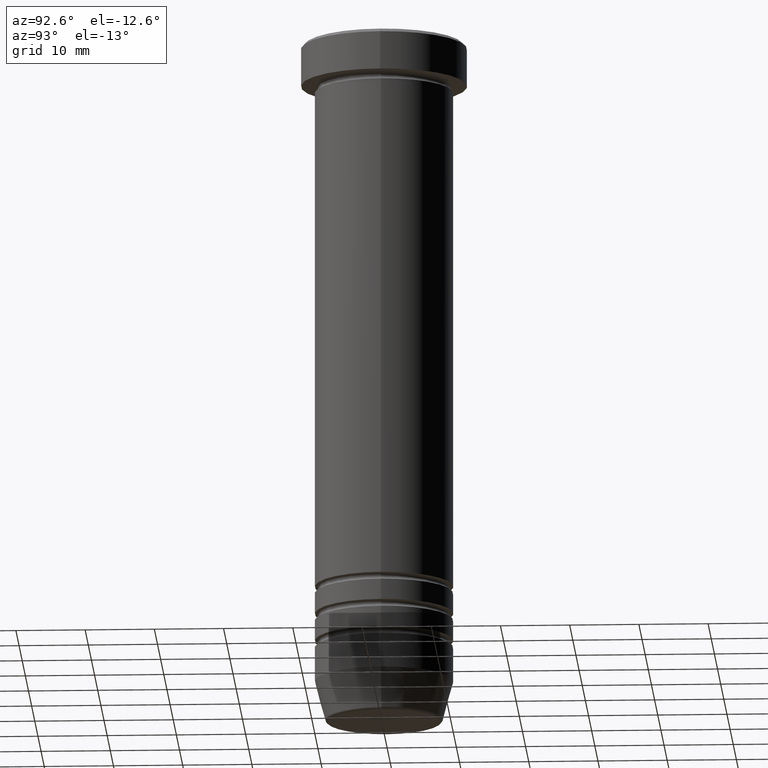
[diagram: clean part render]
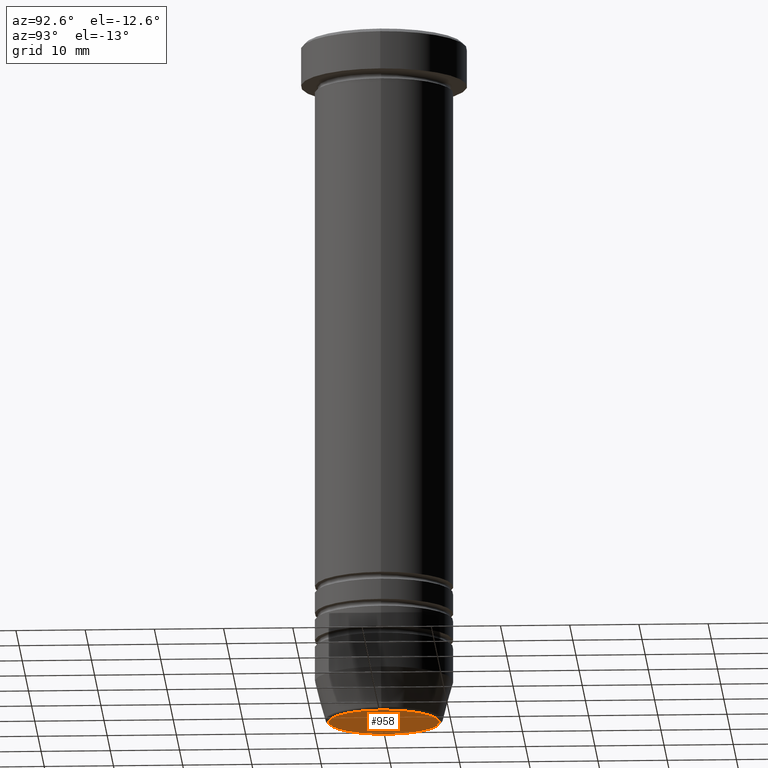
[diagram: same view with one face highlighted and labeled with its STEP entity id]
A machine part, auxiliary view. The second image highlights one B-rep face of the part: STEP entity #958.
In plain terms, the highlighted planar face has unit normal (0, -0, 1).
Its self-contained STEP definition (entity closure, byte-faithful):
#15 = ORIENTED_EDGE ( 'NONE', *, *, #147, .T. ) ;
#51 = VERTEX_POINT ( 'NONE', #656 ) ;
#83 = DIRECTION ( 'NONE',  ( 1.000000000000000000, 0.000000000000000000, 0.000000000000000000 ) ) ;
#100 = AXIS2_PLACEMENT_3D ( 'NONE', #1026, #710, #627 ) ;
#111 = CARTESIAN_POINT ( 'NONE',  ( 0.000000000000000000, 0.000000000000000000, -99.99999999999998579 ) ) ;
#147 = EDGE_CURVE ( 'NONE', #525, #51, #739, .T. ) ;
#341 = AXIS2_PLACEMENT_3D ( 'NONE', #111, #542, #459 ) ;
#380 = FACE_OUTER_BOUND ( 'NONE', #917, .T. ) ;
#450 = AXIS2_PLACEMENT_3D ( 'NONE', #989, #661, #83 ) ;
#459 = DIRECTION ( 'NONE',  ( 1.000000000000000000, 0.000000000000000000, 0.000000000000000000 ) ) ;
#476 = PLANE ( 'NONE',  #100 ) ;
#525 = VERTEX_POINT ( 'NONE', #829 ) ;
#542 = DIRECTION ( 'NONE',  ( 0.000000000000000000, 0.000000000000000000, -1.000000000000000000 ) ) ;
#543 = ORIENTED_EDGE ( 'NONE', *, *, #671, .T. ) ;
#627 = DIRECTION ( 'NONE',  ( 1.000000000000000000, 0.000000000000000000, 0.000000000000000000 ) ) ;
#656 = CARTESIAN_POINT ( 'NONE',  ( -8.008641351423779753, 1.010348648938493172E-15, -99.99999999999998579 ) ) ;
#657 = CIRCLE ( 'NONE', #341, 8.008641351423779753 ) ;
#661 = DIRECTION ( 'NONE',  ( 0.000000000000000000, 0.000000000000000000, -1.000000000000000000 ) ) ;
#671 = EDGE_CURVE ( 'NONE', #51, #525, #657, .T. ) ;
#710 = DIRECTION ( 'NONE',  ( 0.000000000000000000, -0.000000000000000000, 1.000000000000000000 ) ) ;
#739 = CIRCLE ( 'NONE', #450, 8.008641351423779753 ) ;
#829 = CARTESIAN_POINT ( 'NONE',  ( 8.008641351423779753, 0.000000000000000000, -99.99999999999998579 ) ) ;
#917 = EDGE_LOOP ( 'NONE', ( #15, #543 ) ) ;
#958 = ADVANCED_FACE ( 'NONE', ( #380 ), #476, .F. ) ;
#989 = CARTESIAN_POINT ( 'NONE',  ( 0.000000000000000000, 0.000000000000000000, -99.99999999999998579 ) ) ;
#1026 = CARTESIAN_POINT ( 'NONE',  ( 0.000000000000000000, 6.123233995736764507E-15, -99.99999999999998579 ) ) ;